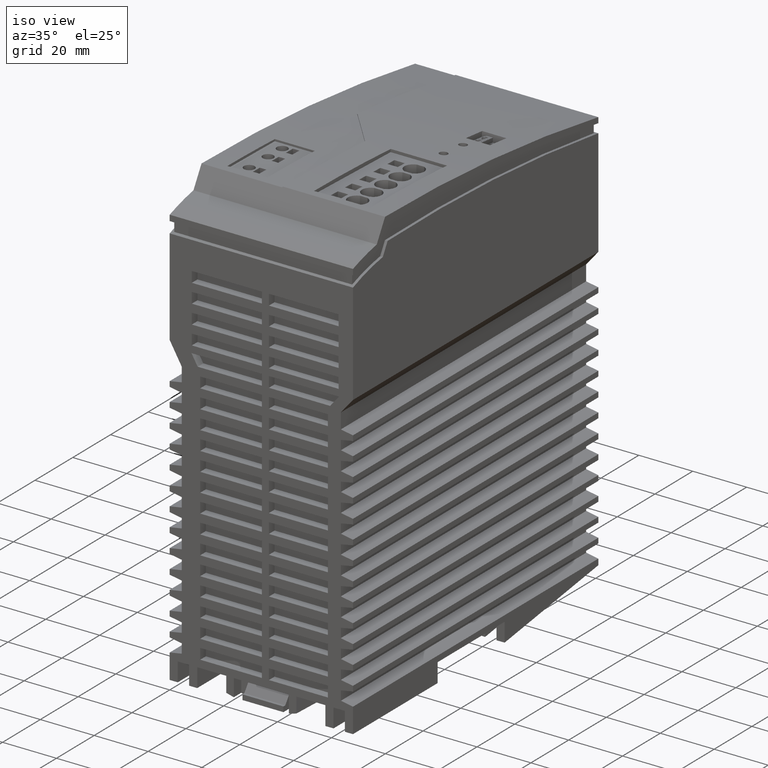
[diagram: clean part render]
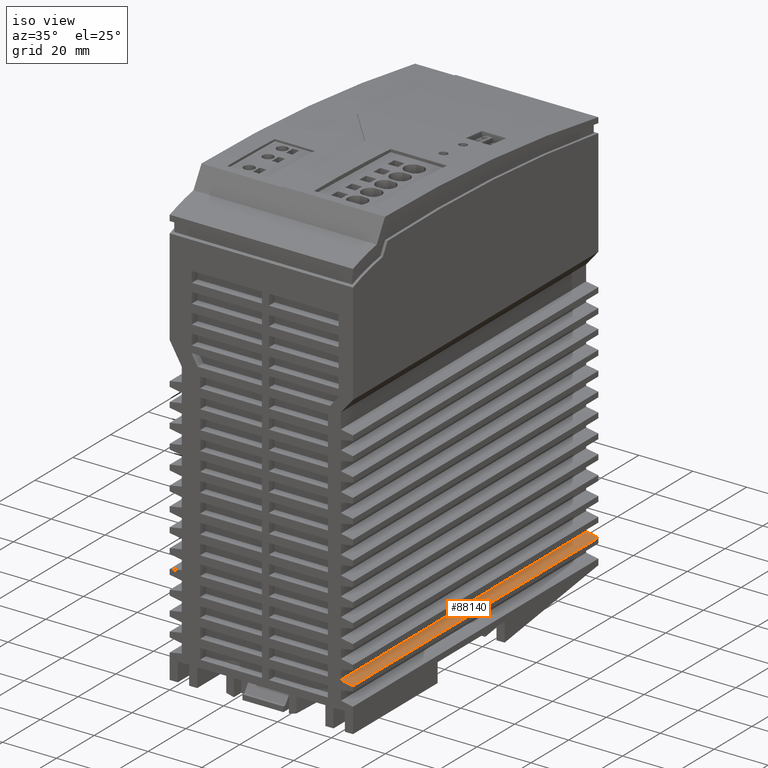
[diagram: same view with one face highlighted and labeled with its STEP entity id]
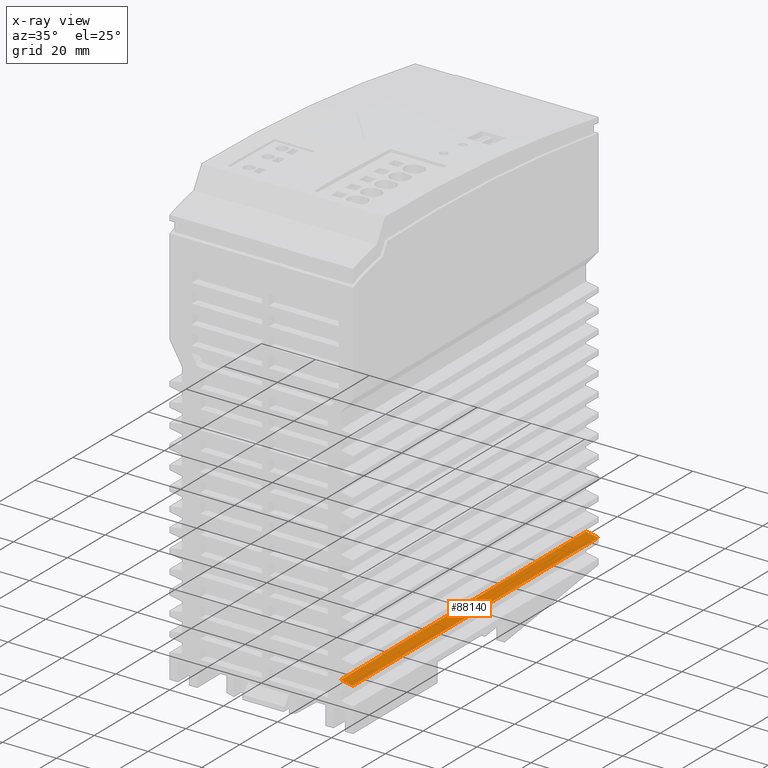
[diagram: x-ray of the same camera — body ghosted, the highlighted face saturated]
A machine part, iso view. The second image highlights one B-rep face of the part: STEP entity #88140.
The next image is the same camera in x-ray: the body ghosted, the highlighted face saturated — about 0% of this face is hidden behind the body in this view.
In plain terms, the highlighted planar face has unit normal (-0.1736, 0, -0.9848).
Its self-contained STEP definition (entity closure, byte-faithful):
#40670=CARTESIAN_POINT('',(9.20652858681235,0.,-63.5));
#40680=VERTEX_POINT('',#40670);
#40730=CARTESIAN_POINT('',(9.20652858681235,64.9999998943551,-63.5));
#40740=DIRECTION('',(0.,1.,0.));
#40750=VECTOR('',#40740,1.);
#40760=LINE('',#40730,#40750);
#40770=CARTESIAN_POINT('',(9.20652858681235,130.,-63.5));
#40780=VERTEX_POINT('',#40770);
#40790=EDGE_CURVE('',#40680,#40780,#40760,.T.);
#62190=CARTESIAN_POINT('',(10.0000000000003,0.,-59.));
#62200=VERTEX_POINT('',#62190);
#62230=CARTESIAN_POINT('',(21.196763274986,0.,4.5));
#62240=DIRECTION('',(-0.173648177666902,-0.,-0.984807753012213));
#62250=VECTOR('',#62240,1.);
#62260=LINE('',#62230,#62250);
#62270=EDGE_CURVE('',#62200,#40680,#62260,.T.);
#82620=CARTESIAN_POINT('',(21.196763274986,130.,4.5));
#82630=DIRECTION('',(-0.173648177666902,-0.,-0.984807753012213));
#82640=VECTOR('',#82630,1.);
#82650=LINE('',#82620,#82640);
#82660=CARTESIAN_POINT('',(10.0000000000003,130.,-59.));
#82670=VERTEX_POINT('',#82660);
#82680=EDGE_CURVE('',#82670,#40780,#82650,.T.);
#87980=CARTESIAN_POINT('',(10.0000000000003,-13.0000024000001,-59.));
#87990=DIRECTION('',(-0.984807753012213,0.,0.173648177666902));
#88000=DIRECTION('',(-0.173648177666902,-0.,-0.984807753012213));
#88010=AXIS2_PLACEMENT_3D('',#87980,#87990,#88000);
#88020=PLANE('',#88010);
#88030=ORIENTED_EDGE('',*,*,#62270,.T.);
#88040=CARTESIAN_POINT('',(10.0000000000003,-13.0000024000001,-59.));
#88050=DIRECTION('',(0.,1.,0.));
#88060=VECTOR('',#88050,1.);
#88070=LINE('',#88040,#88060);
#88080=EDGE_CURVE('',#62200,#82670,#88070,.T.);
#88090=ORIENTED_EDGE('',*,*,#88080,.F.);
#88100=ORIENTED_EDGE('',*,*,#82680,.F.);
#88110=ORIENTED_EDGE('',*,*,#40790,.T.);
#88120=EDGE_LOOP('',(#88110,#88100,#88090,#88030));
#88130=FACE_OUTER_BOUND('',#88120,.T.);
#88140=ADVANCED_FACE('',(#88130),#88020,.F.);